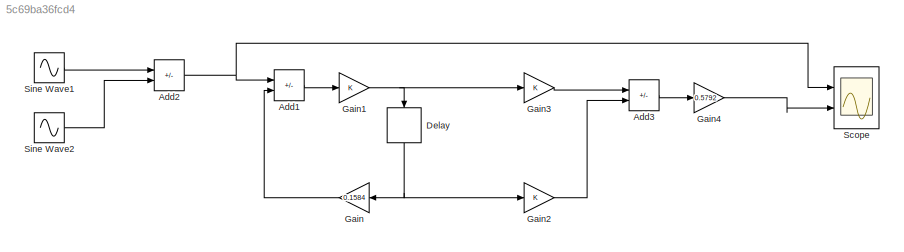
MODEL slx_5c69ba36fcd4
KIND model
CONFIG AbsTol = auto
CONFIG EnableMultiTasking = off
CONFIG FixedStep = auto
CONFIG MaxStep = auto
CONFIG MinStep = auto
CONFIG RelTol = 1e-3
CONFIG SampleTimeConstraint = Unconstrained
CONFIG SolverName = VariableStepAuto
CONFIG StartTime = 0.0
CONFIG StopTime = 10.0
BLOCK [Sum] Add1
  IconShape = rectangular
  Inputs = +-
  Ports = [2, 1]
BLOCK [Sum] Add2
  IconShape = rectangular
  Inputs = +-
  Ports = [2, 1]
BLOCK [Sum] Add3
  IconShape = rectangular
  Inputs = +-
  Ports = [2, 1]
BLOCK [Delay] Delay
  DelayLength = 1
  InputPortMap = u0
  NameLocation = left
  Ports = [1, 1]
BLOCK [Gain] Gain
  Gain = 0.1584
  NameLocation = top
BLOCK [Gain] Gain1
BLOCK [Gain] Gain2
BLOCK [Gain] Gain3
BLOCK [Gain] Gain4
  Gain = 0.5792
BLOCK [Scope] Scope
  Floating = off
  NumInputPorts = 2
  Ports = [2]
  ScopeSpecificationString = Simulink.scopes.TimeScopeBlockCfg('CurrentConfiguration', extmgr.ConfigurationSet(extmgr.Configuration('Core','General UI',true),extmgr.Configuration('Core','Source UI',true),extmgr.Configuration('Sources','WiredSimulink',true),extmgr.Configuration('Visuals','Time Domain',true,'SerializedDisplays',{struct('MinYLimReal','-1.25001','MaxYLimReal','1.25001','YLabelReal','','MinYLimMag','0.00000','MaxY...<+2070ch>
BLOCK [Sin] Sine Wave1
  Ports = [0, 1]
  SampleTime = 0
BLOCK [Sin] Sine Wave2
  Amplitude = 0.00001
  Frequency = 10000
  Ports = [0, 1]
  SampleTime = 0
LINE Add1:1 -> Gain1:1
NET Add2:1 -> Add1:1, Scope:1
LINE Add3:1 -> Gain4:1
NET Delay:1 -> Gain2:1, Gain:1
NET Gain1:1 -> Delay:1, Gain3:1
LINE Gain2:1 -> Add3:2
LINE Gain3:1 -> Add3:1
LINE Gain4:1 -> Scope:2
LINE Gain:1 -> Add1:2
LINE Sine Wave1:1 -> Add2:1
LINE Sine Wave2:1 -> Add2:2
note: NET lines group one-source signal fan-out (src -> all destinations, sorted); 1:1 wires keep LINE
